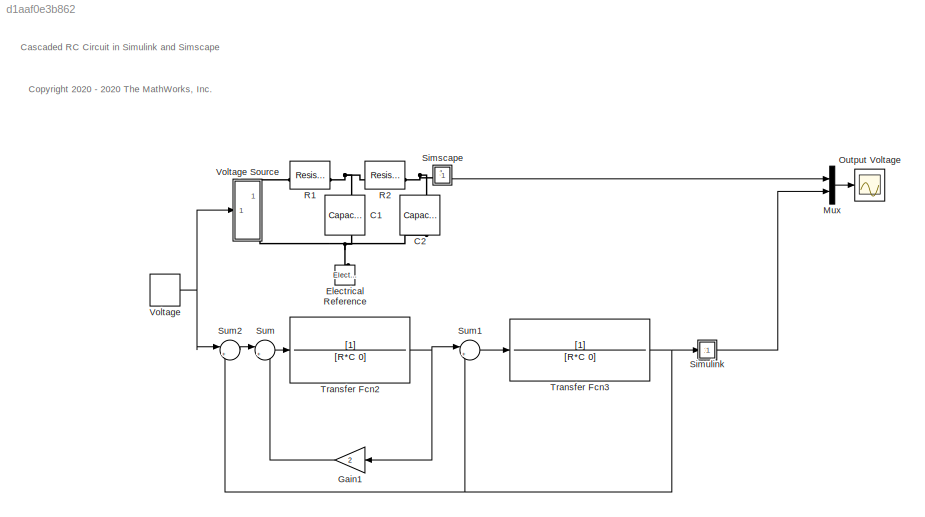
MODEL slx_d1aaf0e3b862
KIND model
CONFIG AbsTol = 1e-3
CONFIG EnableMultiTasking = on
CONFIG FixedStep = auto
CONFIG MaxStep = 1e-3
CONFIG MinStep = auto
CONFIG RelTol = 1e-3
CONFIG SampleTimeConstraint = Unconstrained
CONFIG SolverName = ode15s
CONFIG StartTime = 0.0
CONFIG StopTime = .02
WORKSPACE source: mxarray member
WORKSPACE C = 0.0001
WORKSPACE R = 10
WORKSPACE wp = 1000
BLOCK [Reference] C1  REF=fl_lib/Electrical/Electrical Elements/Capacitor
  NameLocation = left
  SourceBlock = fl_lib/Electrical/Electrical Elements/Capacitor
  SourceType = Capacitor
BLOCK [Reference] C2  REF=fl_lib/Electrical/Electrical Elements/Capacitor
  NameLocation = left
  SourceBlock = fl_lib/Electrical/Electrical Elements/Capacitor
  SourceType = Capacitor
BLOCK [Reference] Electrical Reference  REF=fl_lib/Electrical/Electrical Elements/Electrical Reference
  NameLocation = right
  SourceBlock = fl_lib/Electrical/Electrical Elements/Electrical Reference
  SourceType = Electrical Reference
BLOCK [Gain] Gain1
  Gain = 2
  NameLocation = top
BLOCK [Mux] Mux
  DisplayOption = bar
  Inputs = 2
BLOCK [Scope] Output Voltage
  Floating = off
  NumInputPorts = 1
  ScopeSpecificationString = Simulink.scopes.TimeScopeBlockCfg('CurrentConfiguration', extmgr.ConfigurationSet(extmgr.Configuration('Core','General UI',true,'FigureColor',[0.501960784313725 0.501960784313725 0.501960784313725]),extmgr.Configuration('Core','Source UI',true),extmgr.Configuration('Sources','WiredSimulink',true,'DataLoggingVariableName','ScopeData1','DataLoggingSaveFormat','Array','DataLoggingLimitDataPoints',tru...<+2646ch>
  Tag = PublishScope
BLOCK [Reference] R1  REF=fl_lib/Electrical/Electrical Elements/Resistor
  SourceBlock = fl_lib/Electrical/Electrical Elements/Resistor
  SourceType = Resistor
BLOCK [Reference] R2  REF=fl_lib/Electrical/Electrical Elements/Resistor
  SourceBlock = fl_lib/Electrical/Electrical Elements/Resistor
  SourceType = Resistor
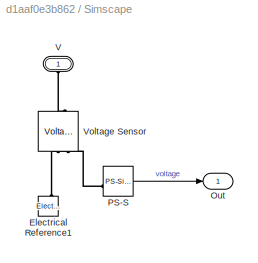
BLOCK [SubSystem] Simscape
BLOCK [Reference] Simscape/Electrical Reference1  REF=fl_lib/Electrical/Electrical Elements/Electrical Reference
  NameLocation = right
  SourceBlock = fl_lib/Electrical/Electrical Elements/Electrical Reference
  SourceType = Electrical Reference
BLOCK [Outport] Simscape/Out
  VectorParamsAs1DForOutWhenUnconnected = off
BLOCK [Reference] Simscape/PS-S  REF=nesl_utility/PS-Simulink
Converter
  SourceBlock = nesl_utility/PS-Simulink\nConverter
  SourceType = PS-Simulink\nConverter
BLOCK [PMIOPort] Simscape/V
  NameLocation = right
  Side = Left
BLOCK [Reference] Simscape/Voltage Sensor  REF=fl_lib/Electrical/Electrical Sensors/Voltage Sensor
  NameLocation = right
  SourceBlock = fl_lib/Electrical/Electrical Sensors/Voltage Sensor
  SourceType = Voltage Sensor
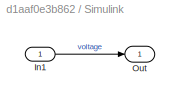
BLOCK [SubSystem] Simulink
BLOCK [Inport] Simulink/In1
BLOCK [Outport] Simulink/Out
  VectorParamsAs1DForOutWhenUnconnected = off
BLOCK [Sum] Sum
  Inputs = |+-
BLOCK [Sum] Sum1
  Inputs = |+-
BLOCK [Sum] Sum2
  Inputs = |++
BLOCK [TransferFcn] Transfer Fcn2
  Denominator = [R*C 0]
BLOCK [TransferFcn] Transfer Fcn3
  Denominator = [R*C 0]
BLOCK [DiscretePulseGenerator] Voltage
  Amplitude = 5
  Period = 1e-2
  PhaseDelay = 1e-3
  PulseType = Time based
  PulseWidth = 50
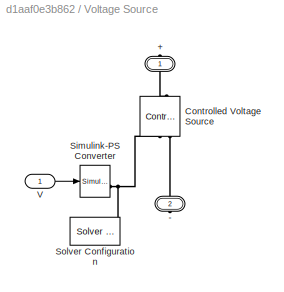
BLOCK [SubSystem] Voltage Source
BLOCK [PMIOPort] Voltage Source/+
  NameLocation = right
  Side = Right
BLOCK [PMIOPort] Voltage Source/-
  NameLocation = right
  Port = 2
  Side = Right
BLOCK [Reference] Voltage Source/Controlled Voltage Source  REF=fl_lib/Electrical/Electrical Sources/Controlled Voltage
Source
  NameLocation = right
  SourceBlock = fl_lib/Electrical/Electrical Sources/Controlled Voltage\nSource
  SourceType = Controlled Voltage\nSource
BLOCK [Reference] Voltage Source/Simulink-PS Converter  REF=nesl_utility/Simulink-PS
Converter
  SourceBlock = nesl_utility/Simulink-PS\nConverter
  SourceType = Simulink-PS\nConverter
BLOCK [Reference] Voltage Source/Solver Configuration  REF=nesl_utility/Solver
Configuration
  SourceBlock = nesl_utility/Solver\nConfiguration
  SourceType = Solver\nConfiguration
BLOCK [Inport] Voltage Source/V
ANNOTATION (root): <copyright redacted>
ANNOTATION (root): Cascaded RC Circuit in Simulink and Simscape
LINE Gain1:1 -> Sum:2
LINE Mux:1 -> Output Voltage:1
LINE Simscape/PS-S:1 -> Simscape/Out:1
LINE Simscape:1 -> Mux:1
LINE Simulink/In1:1 -> Simulink/Out:1
LINE Simulink:1 -> Mux:2
LINE Sum1:1 -> Transfer Fcn3:1
LINE Sum2:1 -> Sum:1
LINE Sum:1 -> Transfer Fcn2:1
NET Transfer Fcn2:1 -> Gain1:1, Sum1:1
NET Transfer Fcn3:1 -> Simulink:1, Sum1:2, Sum2:2
LINE Voltage Source/V:1 -> Voltage Source/Simulink-PS Converter:1
NET Voltage:1 -> Sum2:1, Voltage Source:1
PNET net1: C1:LConn1 -- R1:RConn1 -- R2:LConn1
PNET net2: C1:RConn1 -- C2:RConn1 -- Electrical Reference:LConn1 -- Voltage Source:RConn2
PNET net3: C2:LConn1 -- R2:RConn1 -- Simscape:LConn1
PLINE R1:LConn1 -- Voltage Source:RConn1
PLINE Simscape/Electrical Reference1:LConn1 -- Simscape/Voltage Sensor:RConn2
PLINE Simscape/PS-S:LConn1 -- Simscape/Voltage Sensor:RConn1
PLINE Simscape/V:RConn1 -- Simscape/Voltage Sensor:LConn1
PLINE Voltage Source/+:RConn1 -- Voltage Source/Controlled Voltage Source:LConn1
PLINE Voltage Source/-:RConn1 -- Voltage Source/Controlled Voltage Source:RConn2
PNET net4: Voltage Source/Controlled Voltage Source:RConn1 -- Voltage Source/Simulink-PS Converter:RConn1 -- Voltage Source/Solver Configuration:RConn1
note: NET lines group one-source signal fan-out (src -> all destinations, sorted); 1:1 wires keep LINE; PNET lines group multi-terminal physical nets as a canonical sorted terminal list (undirected conserving connections); 2-terminal nets keep the pairwise PLINE form
